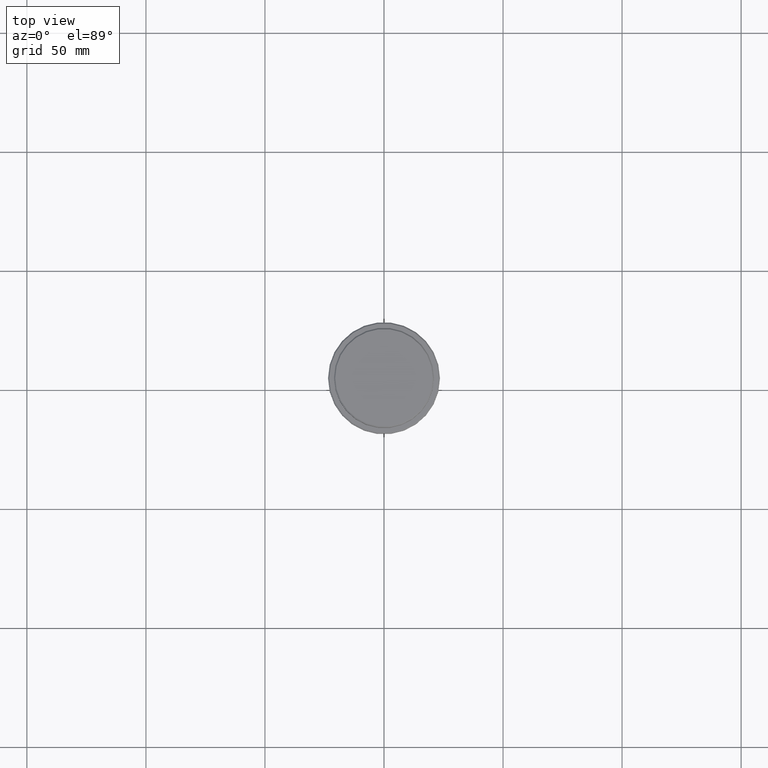
[diagram: clean part render]
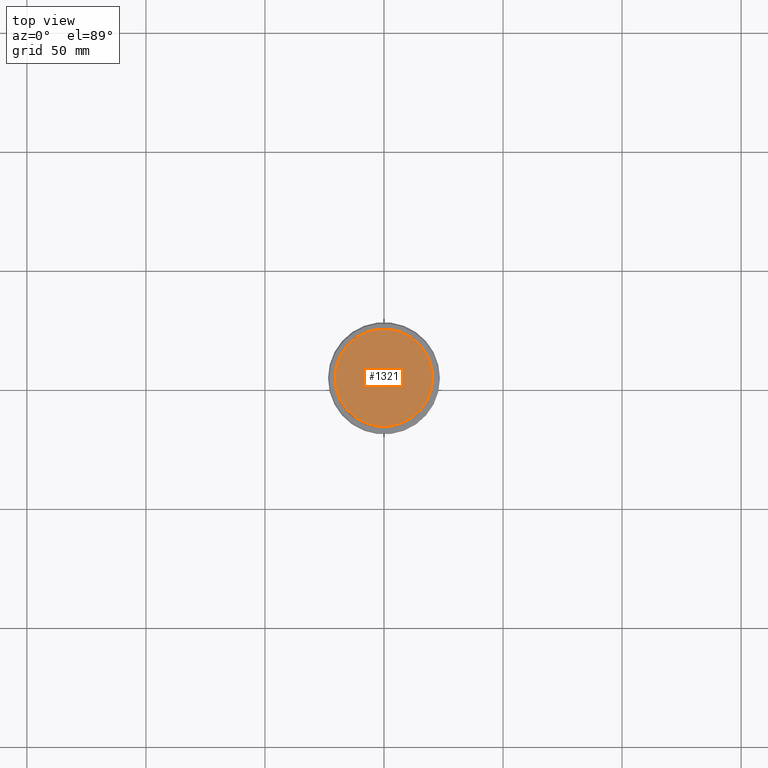
[diagram: same view with one face highlighted and labeled with its STEP entity id]
A machine part, top view. The second image highlights one B-rep face of the part: STEP entity #1321.
In plain terms, the highlighted planar face has unit normal (0, -0, 1).
Its self-contained STEP definition (entity closure, byte-faithful):
#30 = DIRECTION ( 'NONE',  ( -0.000000000000000000, -0.000000000000000000, 1.000000000000000000 ) ) ;
#117 = CARTESIAN_POINT ( 'NONE',  ( -20.49999999999998934, 0.000000000000000000, 0.000000000000000000 ) ) ;
#142 = ORIENTED_EDGE ( 'NONE', *, *, #465, .T. ) ;
#159 = AXIS2_PLACEMENT_3D ( 'NONE', #1249, #523, #656 ) ;
#375 = VERTEX_POINT ( 'NONE', #700 ) ;
#414 = AXIS2_PLACEMENT_3D ( 'NONE', #916, #30, #909 ) ;
#465 = EDGE_CURVE ( 'NONE', #375, #522, #826, .T. ) ;
#506 = DIRECTION ( 'NONE',  ( 0.000000000000000000, -0.000000000000000000, 1.000000000000000000 ) ) ;
#519 = CARTESIAN_POINT ( 'NONE',  ( 0.000000000000000000, 0.000000000000000000, 0.000000000000000000 ) ) ;
#522 = VERTEX_POINT ( 'NONE', #117 ) ;
#523 = DIRECTION ( 'NONE',  ( -0.000000000000000000, -0.000000000000000000, 1.000000000000000000 ) ) ;
#578 = ORIENTED_EDGE ( 'NONE', *, *, #727, .T. ) ;
#656 = DIRECTION ( 'NONE',  ( 1.000000000000000000, 0.000000000000000000, 0.000000000000000000 ) ) ;
#700 = CARTESIAN_POINT ( 'NONE',  ( 20.49999999999998934, 2.541142108230757085E-15, 0.000000000000000000 ) ) ;
#727 = EDGE_CURVE ( 'NONE', #522, #375, #1281, .T. ) ;
#821 = PLANE ( 'NONE',  #995 ) ;
#826 = CIRCLE ( 'NONE', #159, 20.49999999999998934 ) ;
#909 = DIRECTION ( 'NONE',  ( 1.000000000000000000, 0.000000000000000000, 0.000000000000000000 ) ) ;
#916 = CARTESIAN_POINT ( 'NONE',  ( 0.000000000000000000, 0.000000000000000000, 0.000000000000000000 ) ) ;
#947 = DIRECTION ( 'NONE',  ( 1.000000000000000000, 0.000000000000000000, 0.000000000000000000 ) ) ;
#995 = AXIS2_PLACEMENT_3D ( 'NONE', #519, #506, #947 ) ;
#1021 = EDGE_LOOP ( 'NONE', ( #578, #142 ) ) ;
#1070 = FACE_OUTER_BOUND ( 'NONE', #1021, .T. ) ;
#1249 = CARTESIAN_POINT ( 'NONE',  ( 0.000000000000000000, 0.000000000000000000, 0.000000000000000000 ) ) ;
#1281 = CIRCLE ( 'NONE', #414, 20.49999999999998934 ) ;
#1321 = ADVANCED_FACE ( 'NONE', ( #1070 ), #821, .T. ) ;